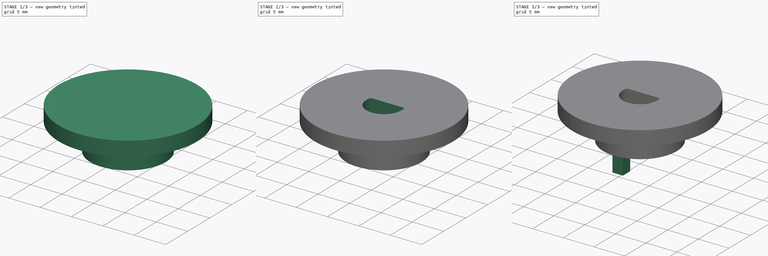
[diagram: build sequence overview — one tinted view per stage of 3, left to right]
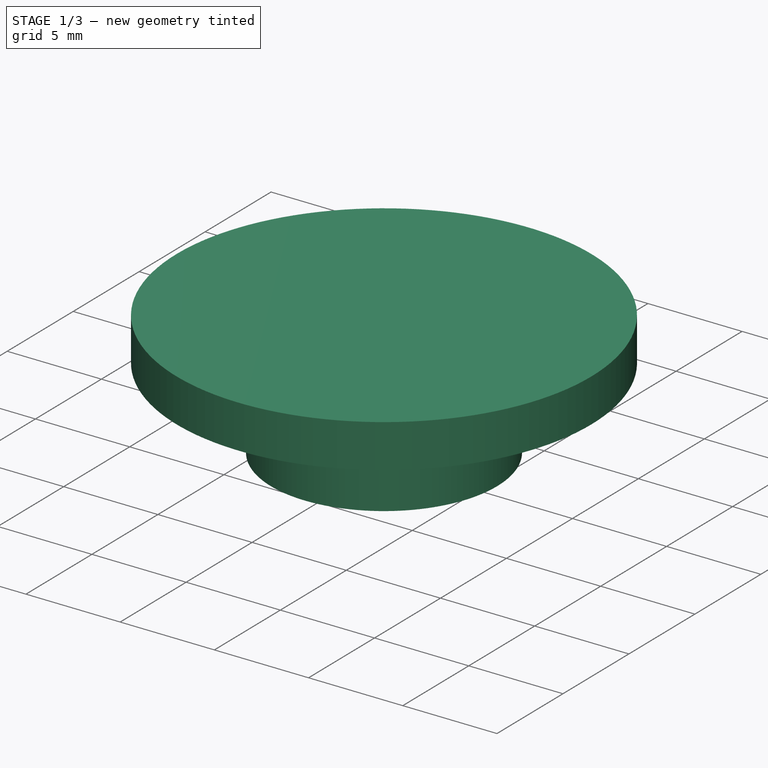
[diagram: stage 1 of 3 — iso view after this stage's code; geometry added in this stage tinted green]
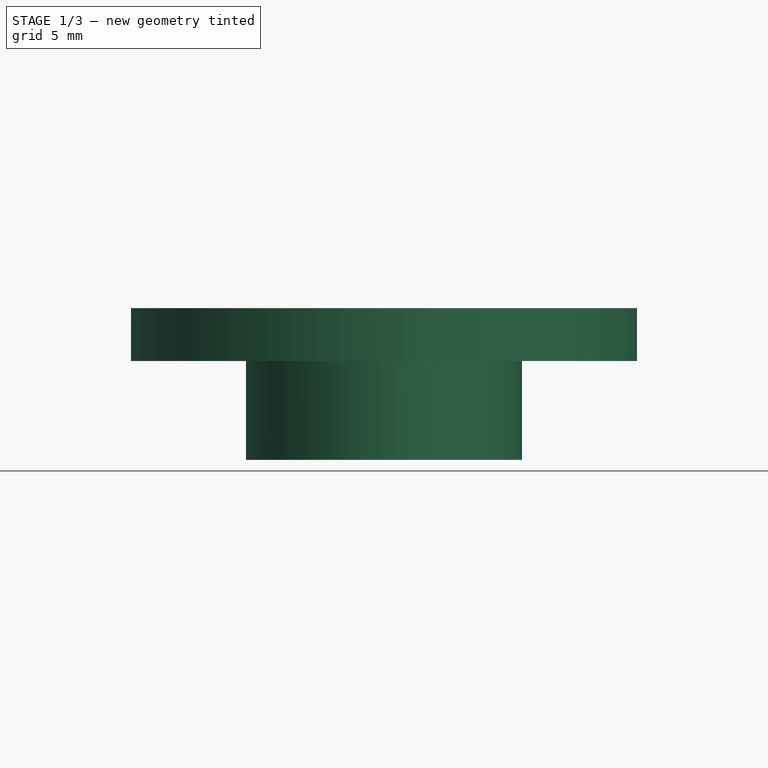
[diagram: stage 1 of 3 — front view after this stage's code; geometry added in this stage tinted green]
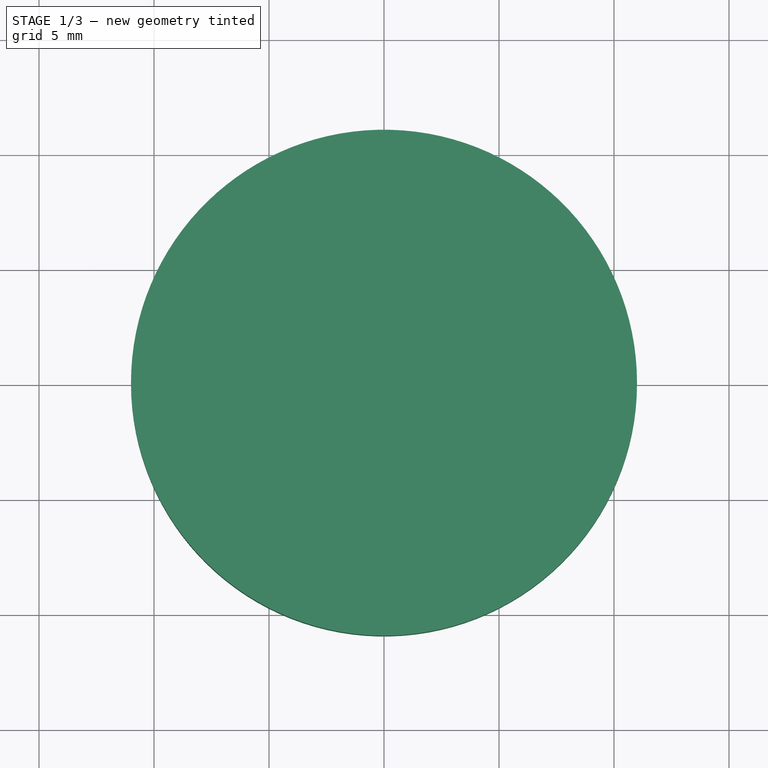
[diagram: stage 1 of 3 — top view after this stage's code; geometry added in this stage tinted green]
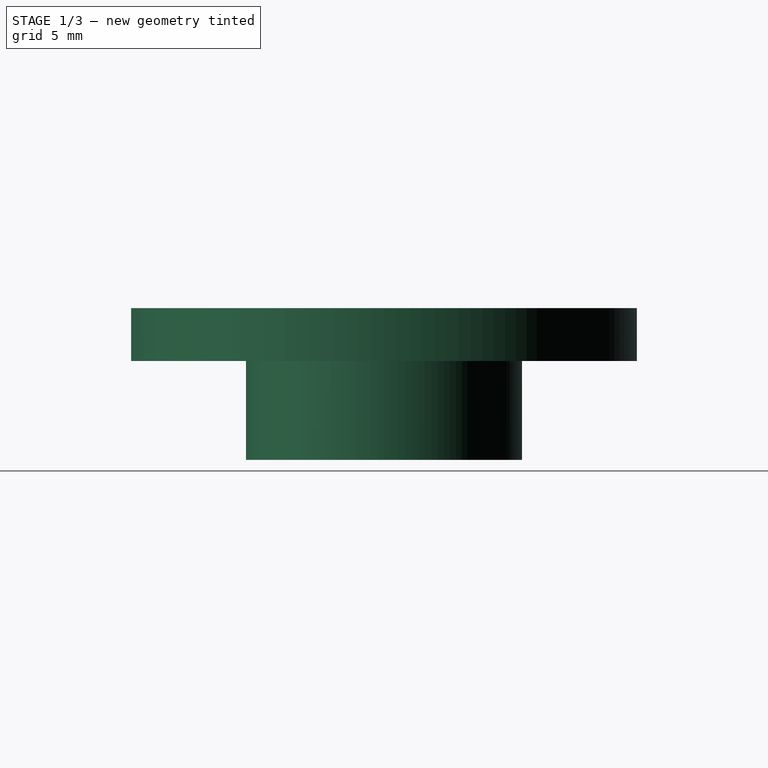
[diagram: stage 1 of 3 — right view after this stage's code; geometry added in this stage tinted green]
FCSTD DOCUMENT  (FreeCAD 0.15R4671 (Git))
Label: half_tape_wheel_stepper
License: All rights reserved
LicenseURL: http://en.wikipedia.org/wiki/All_rights_reserved
objects: Sketcher::SketchObject×5, PartDesign::Pocket×3, PartDesign::Pad×2
note: 15 computed .brp shape members not serialized (recipe doc carries the construction recipe); baked Part::Feature solids carry a one-line shape summary decoded from their .brp

FEATURE [Sketcher::SketchObject] Sketch
  sketch-geometry (1):
    g0: Circle CenterX=0 CenterY=0 CenterZ=0 NormalX=0 NormalY=0 NormalZ=1 Radius=11
  constraints (2):
    c: Coincident(g0,g-1)
    c: Radius(g0) = 11
FEATURE [PartDesign::Pad] Pad
  Length = 6.6
  Length2 = 100
  Sketch = -> Sketch
  Type = 0
FEATURE [Sketcher::SketchObject] Sketch001
  ExternalGeometry = -> [Pad]
  Placement = pos=(0,0,0) rot=(1,0,0;3.14159rad)
  Support = -> Pad [Face2]
  sketch-geometry (2):
    g0: Circle CenterX=0 CenterY=0 CenterZ=0 NormalX=0 NormalY=0 NormalZ=1 Radius=11
    g1: Circle CenterX=0 CenterY=0 CenterZ=0 NormalX=0 NormalY=0 NormalZ=1 Radius=6
  constraints (4):
    c: Coincident(g0,g-1)
    c: Radius(g0) = 11
    c: Coincident(g1,g-1)
    c: Radius(g1) = 6
FEATURE [PartDesign::Pocket] Pocket
  Length = 4.3
  Sketch = -> Sketch001
  Type = 0
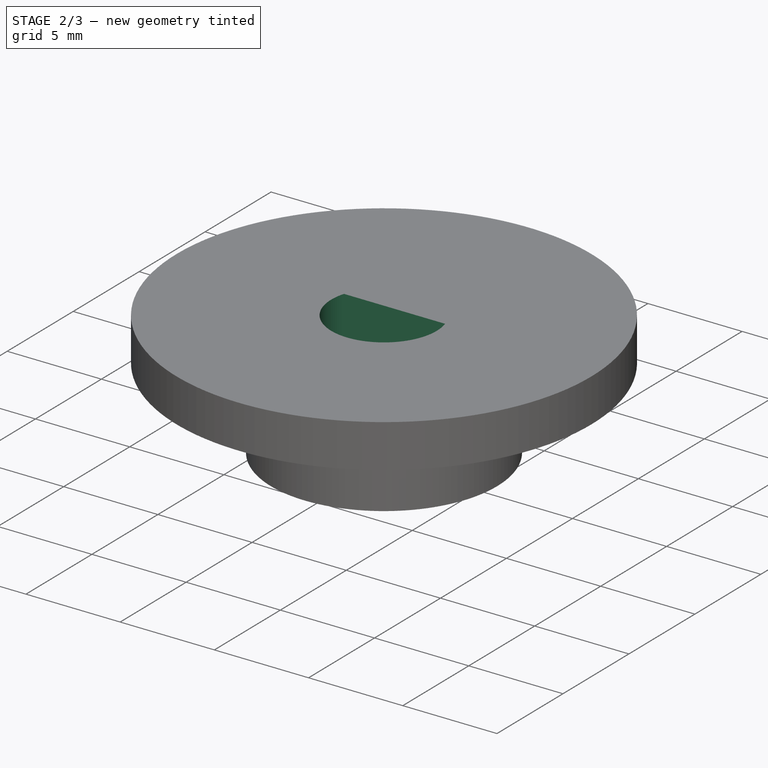
[diagram: stage 2 of 3 — iso view after this stage's code; geometry added in this stage tinted green]
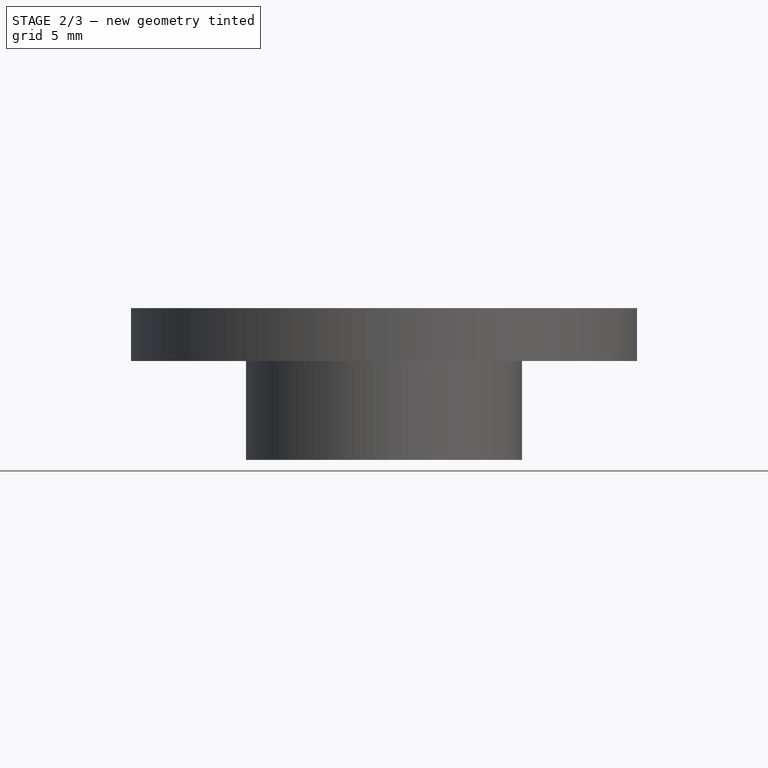
[diagram: stage 2 of 3 — front view after this stage's code; geometry added in this stage tinted green]
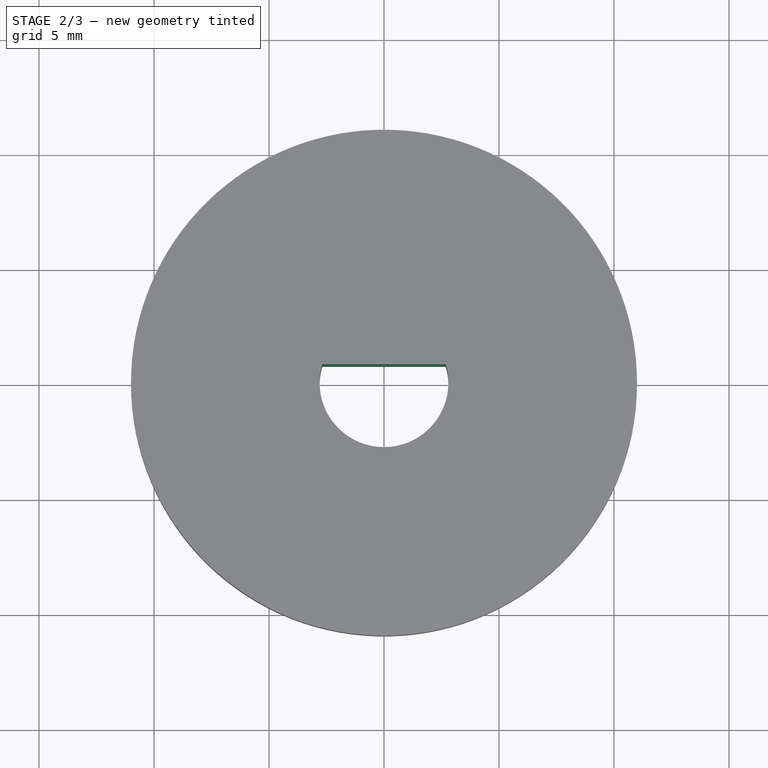
[diagram: stage 2 of 3 — top view after this stage's code; geometry added in this stage tinted green]
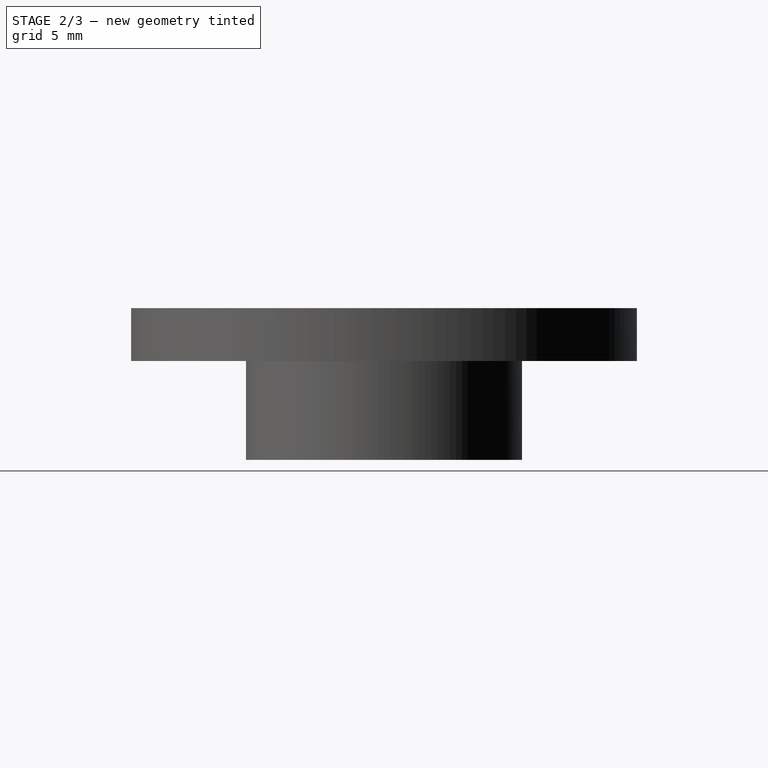
[diagram: stage 2 of 3 — right view after this stage's code; geometry added in this stage tinted green]
FEATURE [Sketcher::SketchObject] Sketch002
  Placement = pos=(0,0,6.6) rot=(0,0,1;0rad)
  Support = -> Pocket [Face3]
  sketch-geometry (3):
    g0: Circle [constr] CenterX=0 CenterY=0 CenterZ=0 NormalX=0 NormalY=0 NormalZ=1 Radius=2.8
    g1: LineSegment StartX=-2.68328 StartY=0.8 StartZ=0 EndX=2.68328 EndY=0.8 EndZ=0
    g2: ArcOfCircle CenterX=0 CenterY=0 CenterZ=0 NormalX=0 NormalY=0 NormalZ=1 Radius=2.8 StartAngle=2.85184 EndAngle=6.57294
  constraints (9):
    c: Coincident(g0,g-1)
    c: PointOnObject(g1,g0)
    c: PointOnObject(g1,g0)
    c: Horizontal(g1)
    c: Coincident(g2,g-1)
    c: Coincident(g2,g1)
    c: Coincident(g2,g1)
    c: Radius(g0) = 2.8
    c: DistanceY(g-1,g1) = 0.8
FEATURE [PartDesign::Pocket] Pocket001
  Length = 6
  Sketch = -> Sketch002
  Type = 1
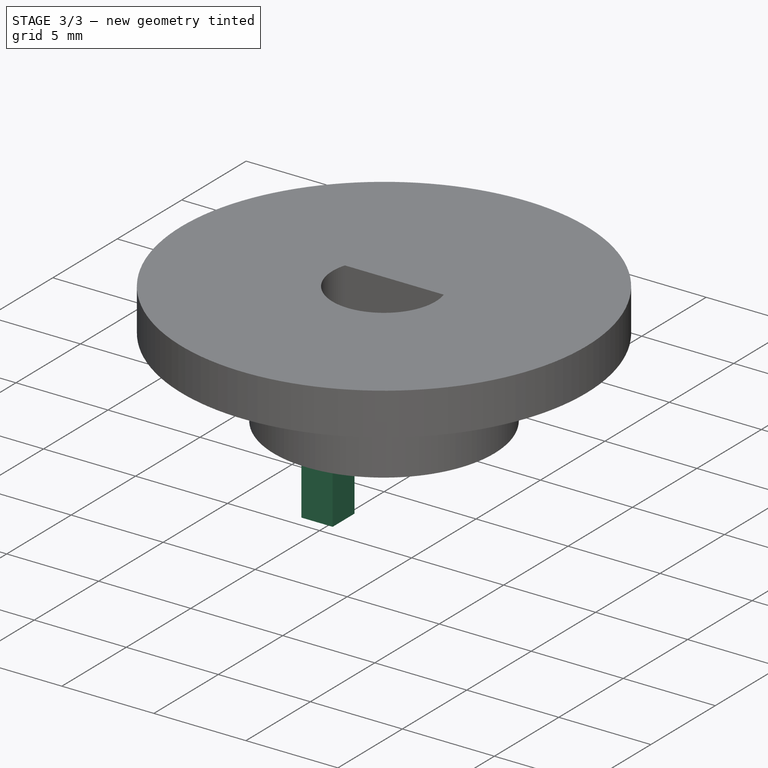
[diagram: stage 3 of 3 — iso view after this stage's code; geometry added in this stage tinted green]
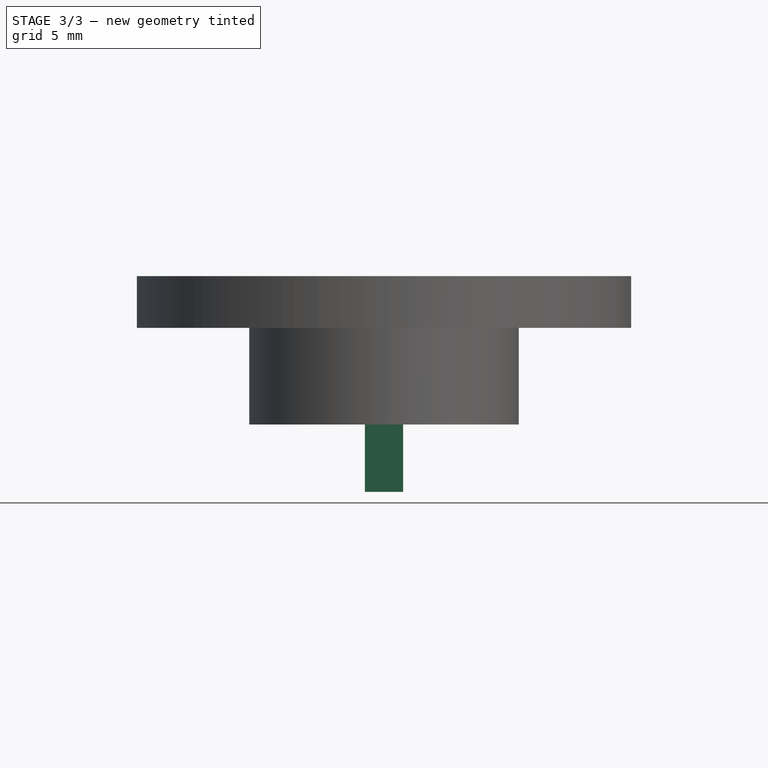
[diagram: stage 3 of 3 — front view after this stage's code; geometry added in this stage tinted green]
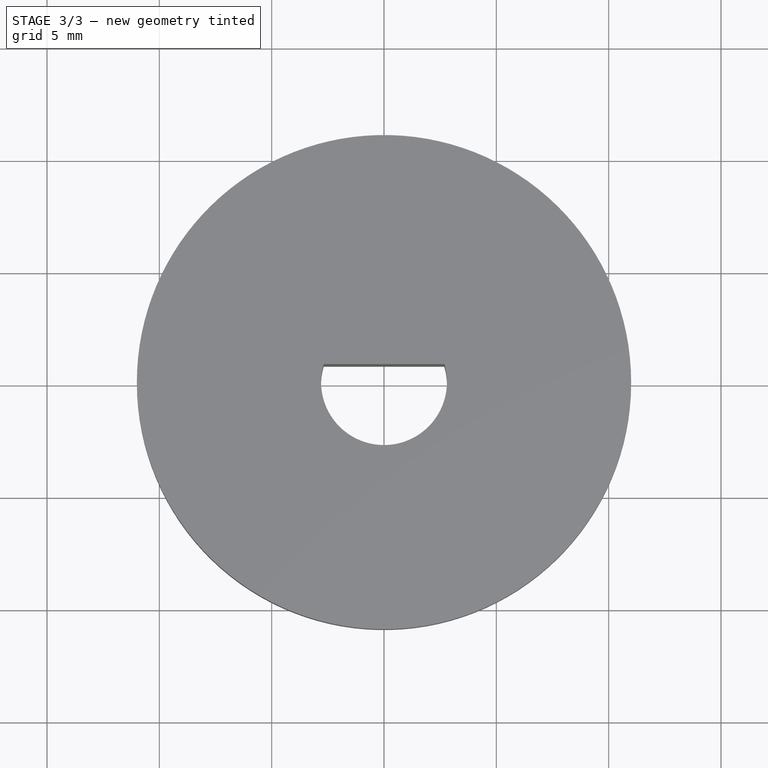
[diagram: stage 3 of 3 — top view after this stage's code; geometry added in this stage tinted green]
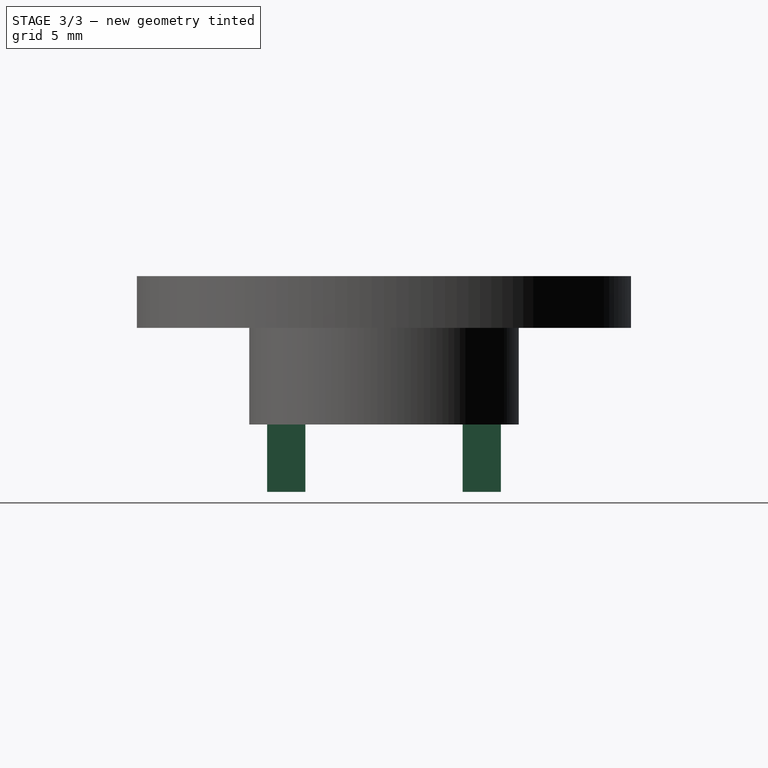
[diagram: stage 3 of 3 — right view after this stage's code; geometry added in this stage tinted green]
FEATURE [Sketcher::SketchObject] Sketch003
  ExternalGeometry = -> [Pocket001]
  Placement = pos=(0,0,0) rot=(1,0,0;3.14159rad)
  Support = -> Pocket001 [Face7]
  sketch-geometry (9):
    g0: LineSegment StartX=-0.85 StartY=5.2 StartZ=0 EndX=0.85 EndY=5.2 EndZ=0
    g1: LineSegment StartX=0.85 StartY=5.2 StartZ=0 EndX=0.85 EndY=3.5 EndZ=0
    g2: LineSegment StartX=0.85 StartY=3.5 StartZ=0 EndX=-0.85 EndY=3.5 EndZ=0
    g3: LineSegment StartX=-0.85 StartY=3.5 StartZ=0 EndX=-0.85 EndY=5.2 EndZ=0
    g4: LineSegment StartX=-0.85 StartY=-3.5 StartZ=0 EndX=0.85 EndY=-3.5 EndZ=0
    g5: LineSegment StartX=0.85 StartY=-3.5 StartZ=0 EndX=0.85 EndY=-5.2 EndZ=0
    g6: LineSegment StartX=0.85 StartY=-5.2 StartZ=0 EndX=-0.85 EndY=-5.2 EndZ=0
    g7: LineSegment StartX=-0.85 StartY=-5.2 StartZ=0 EndX=-0.85 EndY=-3.5 EndZ=0
    g8: LineSegment [constr] StartX=0 StartY=0 StartZ=0 EndX=0 EndY=-6 EndZ=0
  constraints (26):
    c: Coincident(g0,g1)
    c: Coincident(g1,g2)
    c: Coincident(g2,g3)
    c: Coincident(g3,g0)
    c: Horizontal(g0)
    c: Horizontal(g2)
    c: Vertical(g1)
    c: Vertical(g3)
    c: Coincident(g4,g5)
    c: Coincident(g5,g6)
    c: Coincident(g6,g7)
    c: Coincident(g7,g4)
    c: Horizontal(g4)
    c: Horizontal(g6)
    c: Vertical(g5)
    c: Vertical(g7)
    c: Coincident(g8,g-1)
    c: PointOnObject(g8,g-3)
    c: Symmetric(g4,g4,g8)
    c: Equal(g4,g2)
    c: Equal(g1,g5)
    c: Symmetric(g2,g1,g8)
    c: Distance(g0) = 1.7
    c: Distance(g1) = 1.7
    c: DistanceY(g-1,g2) = 3.5
    c: DistanceY(g-1,g4) = -3.5
FEATURE [PartDesign::Pad] Pad001
  Length = 3
  Length2 = 100
  Sketch = -> Sketch003
  Type = 0
FEATURE [Sketcher::SketchObject] Sketch004
  ExternalGeometry = -> [Pad001]
  Placement = pos=(0,0,0) rot=(1,0,0;3.14159rad)
  Support = -> Pad001 [Face7]
  sketch-geometry (9):
    g0: LineSegment [constr] StartX=0 StartY=0 StartZ=0 EndX=-6 EndY=0 EndZ=0
    g1: LineSegment StartX=-5.2 StartY=1 StartZ=0 EndX=-3.2 EndY=1 EndZ=0
    g2: LineSegment StartX=-3.2 StartY=1 StartZ=0 EndX=-3.2 EndY=-1 EndZ=0
    g3: LineSegment StartX=-3.2 StartY=-1 StartZ=0 EndX=-5.2 EndY=-1 EndZ=0
    g4: LineSegment StartX=-5.2 StartY=-1 StartZ=0 EndX=-5.2 EndY=1 EndZ=0
    g5: LineSegment StartX=3.2 StartY=1 StartZ=0 EndX=5.2 EndY=1 EndZ=0
    g6: LineSegment StartX=5.2 StartY=1 StartZ=0 EndX=5.2 EndY=-1 EndZ=0
    g7: LineSegment StartX=5.2 StartY=-1 StartZ=0 EndX=3.2 EndY=-1 EndZ=0
    g8: LineSegment StartX=3.2 StartY=-1 StartZ=0 EndX=3.2 EndY=1 EndZ=0
  constraints (26):
    c: Coincident(g0,g-1)
    c: PointOnObject(g0,g-3)
    c: Coincident(g1,g2)
    c: Coincident(g2,g3)
    c: Coincident(g3,g4)
    c: Coincident(g4,g1)
    c: Horizontal(g1)
    c: Horizontal(g3)
    c: Vertical(g2)
    c: Vertical(g4)
    c: Coincident(g5,g6)
    c: Coincident(g6,g7)
    c: Coincident(g7,g8)
    c: Coincident(g8,g5)
    c: Horizontal(g5)
    c: Horizontal(g7)
    c: Vertical(g6)
    c: Vertical(g8)
    c: Symmetric(g5,g7,g0)
    c: Symmetric(g2,g1,g0)
    c: Equal(g3,g7)
    c: Equal(g2,g6)
    c: Equal(g5,g6)
    c: Distance(g5) = 2
    c: DistanceX(g-1,g2) = -3.2
    c: DistanceX(g-1,g7) = 3.2
FEATURE [PartDesign::Pocket] Pocket002
  Length = 4.3
  Sketch = -> Sketch004
  Type = 0
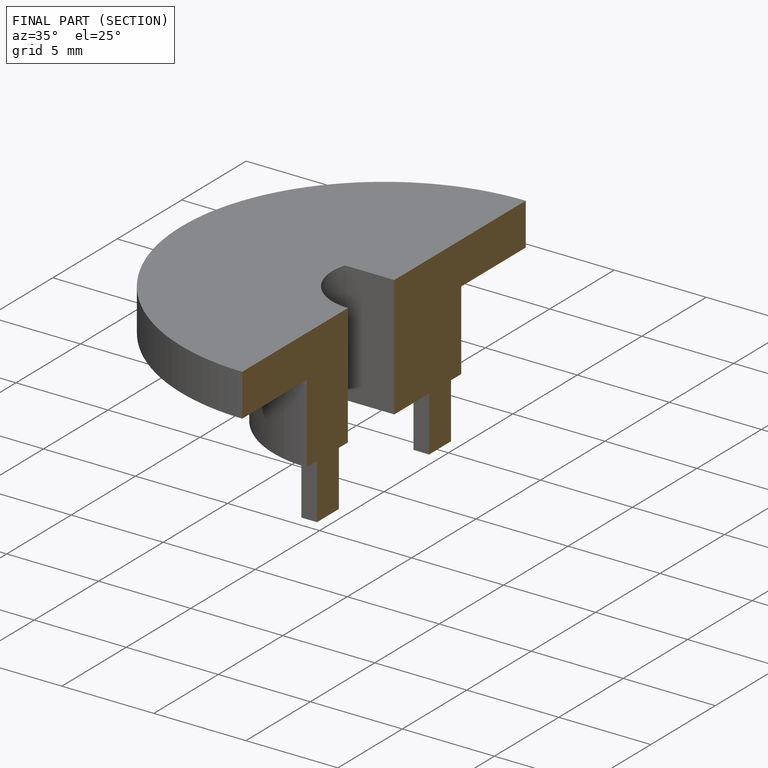
[diagram: finished part — half-section view (interior)]
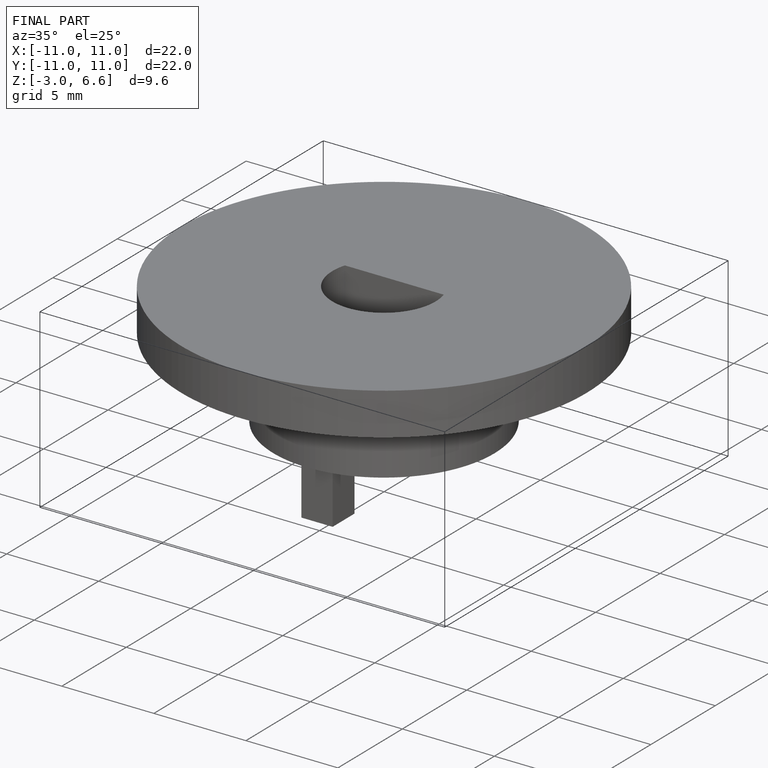
[diagram: finished part — iso view with bounding-box wireframe]
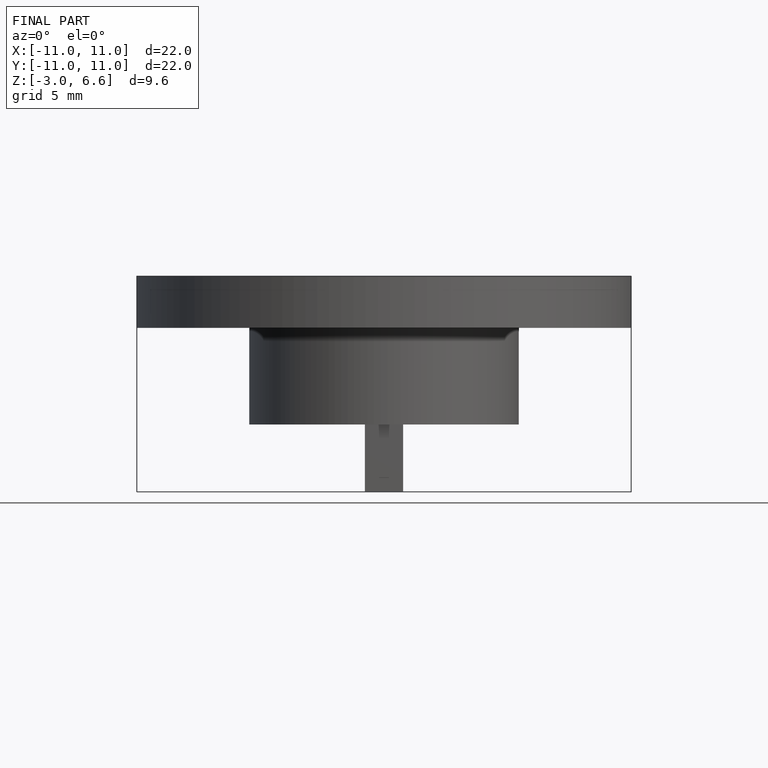
[diagram: finished part — front view with bounding-box wireframe]
